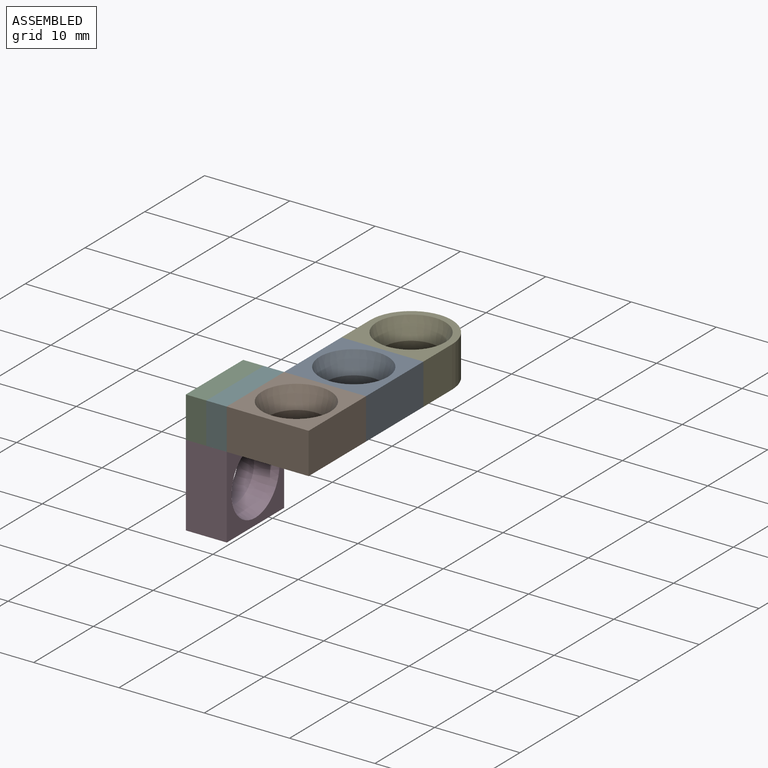
[diagram: assembled view]
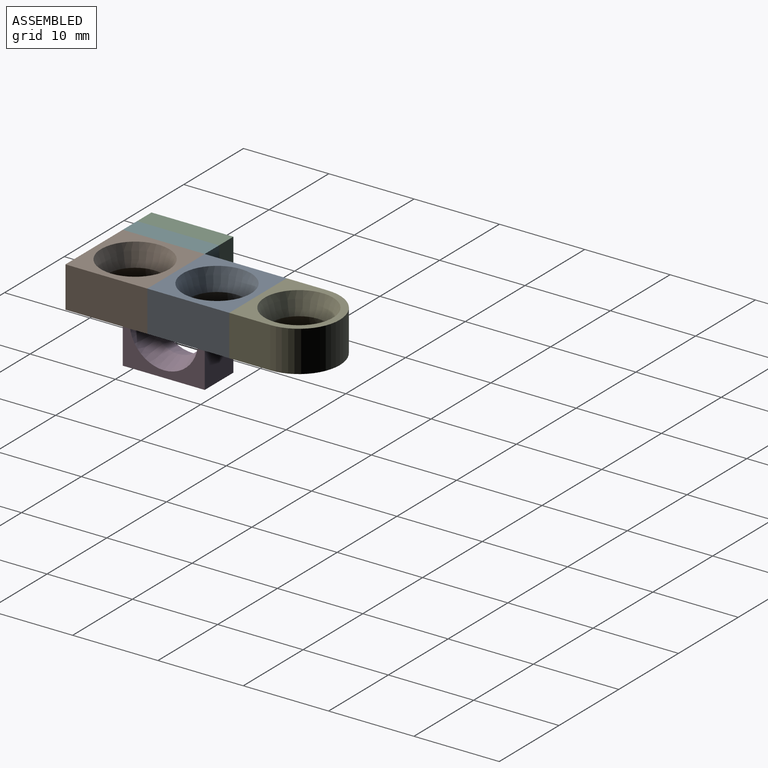
[diagram: assembled view, second angle]
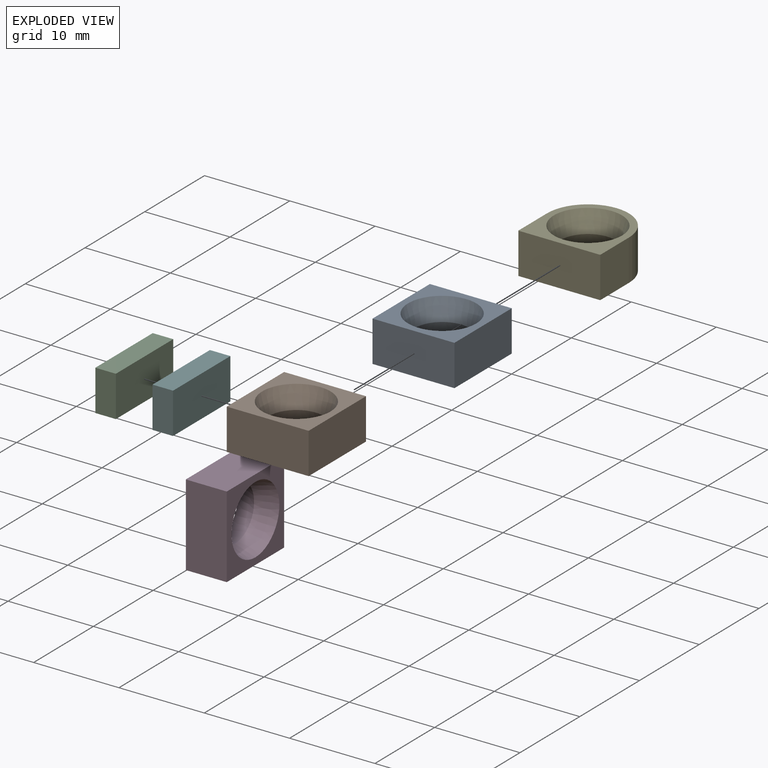
[diagram: exploded view]
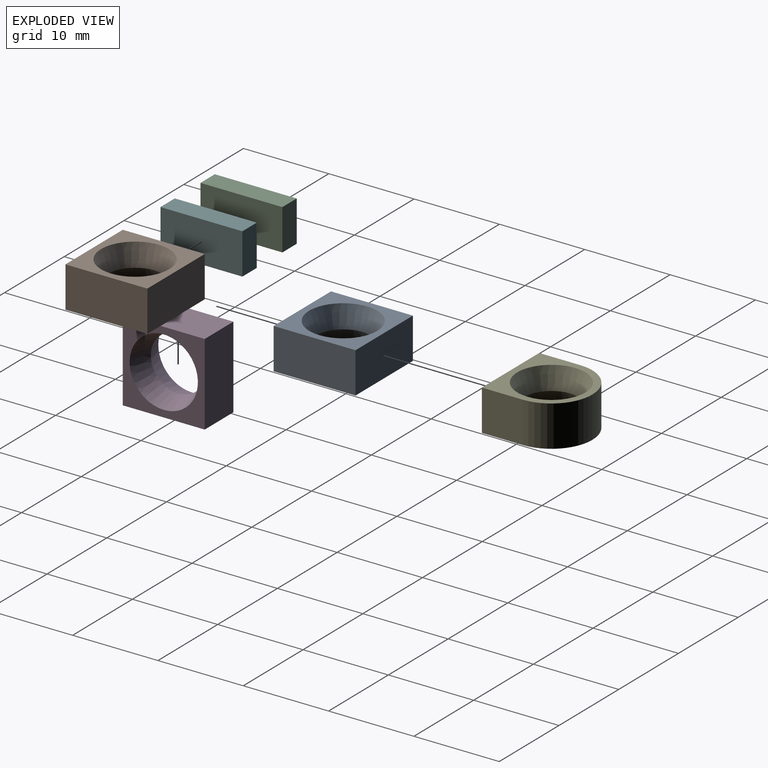
[diagram: exploded view, second angle]
ASSEMBLY  parts=6 mates=5
PART A: 8 faces, bbox 9.6x9.6x4.8 mm
  f0: plane 9.6x9.6mm, normal (0,0,1), area 41.9mm2, adj f2,f4,f5,f6,f7
  f1: plane 9.6x9.6mm, normal (0,0,-1), area 41.9mm2, adj f3,f4,f5,f6,f7
  f2: cone r=3.2mm half-angle=18.4deg, axis (0,0,1), area 57.2mm2, adj f0,f3
  f3: cone r=4mm half-angle=18.4deg, axis (0,0,-1), area 57.2mm2, adj f1,f2
  f4: plane 9.6x4.8mm, normal (0,1,0), area 46.1mm2, adj f0,f1,f5,f6
  f5: plane 9.6x4.8mm, normal (1,0,0), area 46.1mm2, adj f0,f1,f4,f7
  f6: plane 9.6x4.8mm, normal (-1,0,0), area 46.1mm2, adj f0,f1,f4,f7
  f7: plane 9.6x4.8mm, normal (0,-1,0), area 46.1mm2, adj f0,f1,f5,f6
PART B: same geometry as A
PART C: 6 faces, bbox 2.4x9.6x4.8 mm
  f0: plane 4.8x2.4mm, normal (0,-1,0), area 11.5mm2, adj f1,f3,f4,f5
  f1: plane 9.6x4.8mm, normal (1,0,0), area 46.1mm2, adj f0,f2,f4,f5
  f2: plane 4.8x2.4mm, normal (0,1,0), area 11.5mm2, adj f1,f3,f4,f5
  f3: plane 9.6x4.8mm, normal (-1,0,0), area 46.1mm2, adj f0,f2,f4,f5
  f4: plane 9.6x2.4mm, normal (0,0,1), area 23mm2, adj f0,f1,f2,f3
  f5: plane 9.6x2.4mm, normal (0,0,-1), area 23mm2, adj f0,f1,f2,f3
PART D: same geometry as A
PART E: 8 faces, bbox 9.6x9.6x4.8 mm
  f0: cylinder r=4.8mm len=9.6mm, axis (0,0,-1), area 72.4mm2, adj f1,f2,f5,f7
  f1: plane 9.6x9.6mm, normal (0,0,1), area 32mm2, adj f0,f3,f5,f6,f7
  f2: plane 9.6x9.6mm, normal (0,0,-1), area 32mm2, adj f0,f4,f5,f6,f7
  f3: cone r=3.2mm half-angle=18.4deg, axis (0,0,1), area 57.2mm2, adj f1,f4
  f4: cone r=4mm half-angle=18.4deg, axis (0,0,-1), area 57.2mm2, adj f2,f3
  f5: plane 4.8x4.8mm, normal (1,0,0), area 23mm2, adj f0,f1,f2,f6
  f6: plane 9.6x4.8mm, normal (0,-1,0), area 46.1mm2, adj f1,f2,f5,f7
  f7: plane 4.8x4.8mm, normal (-1,0,0), area 23mm2, adj f0,f1,f2,f6
PART F: same geometry as C
PLACE A t=(30.18,13.04,15.02)mm
PLACE B t=(30.18,3.44,15.02)mm
PLACE C t=(21.78,19.44,15.02)mm
PLACE D rot(axis=(0.71,0,-0.71),180deg) t=(25.38,35.44,10.22)mm
PLACE E t=(30.18,-25.36,15.02)mm
PLACE F t=(24.18,19.44,15.02)mm
MATE fastened D.f6 <-> F.f5  axis (0,0,1) through (22.98,19.44,15.02)mm
MATE fastened E.f6 <-> A.f4  axis (0,-1,0) through (30.18,33.84,17.42)mm
MATE fastened B.f4 <-> A.f7  axis (0,1,0) through (30.18,24.24,17.42)mm
MATE fastened F.f1 <-> B.f6  axis (1,0,0) through (25.38,19.44,17.42)mm
MATE fastened C.f1 <-> F.f3  axis (1,0,0) through (22.98,19.44,17.42)mm
